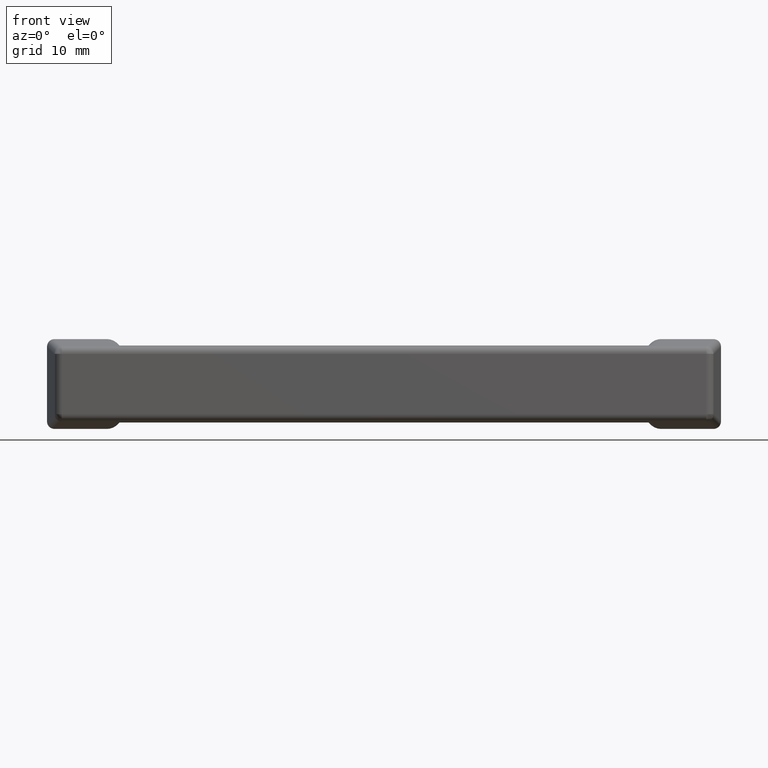
[diagram: clean part render]
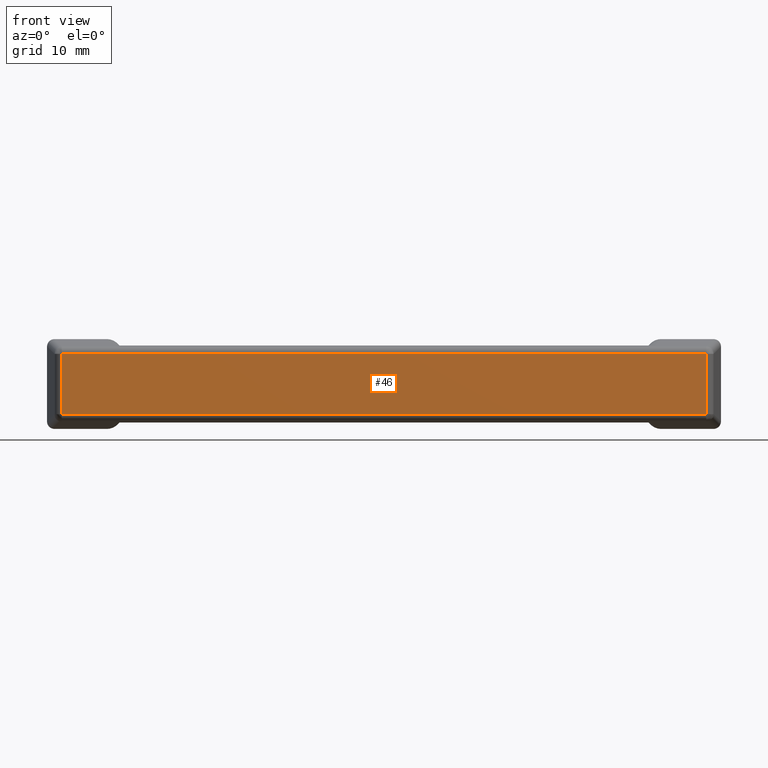
[diagram: same view with one face highlighted and labeled with its STEP entity id]
A machine part, front view. The second image highlights one B-rep face of the part: STEP entity #46.
In plain terms, the highlighted planar face has unit normal (0, 1, -0).
Its self-contained STEP definition (entity closure, byte-faithful):
#46=ADVANCED_FACE('',(#150),#149,.F.);
#149=PLANE('',#604);
#150=FACE_OUTER_BOUND('',#605,.T.);
#601=CARTESIAN_POINT('',(5.16329729293E+001,-3.60000000000E+001,-4.83287045964E+000));
#602=DIRECTION('',(0.00000000000E+000,1.00000000000E+000,-0.00000000000E+000));
#603=DIRECTION('',(-1.00000000000E+000,0.00000000000E+000,0.00000000000E+000));
#604=AXIS2_PLACEMENT_3D('',#601,#602,#603);
#605=EDGE_LOOP('',(#1082,#1083,#1084,#1085));
#1082=ORIENTED_EDGE('',*,*,#1376,.T.);
#1083=ORIENTED_EDGE('',*,*,#1377,.T.);
#1084=ORIENTED_EDGE('',*,*,#1378,.T.);
#1085=ORIENTED_EDGE('',*,*,#1379,.T.);
#1376=EDGE_CURVE('',#1786,#1787,#1788,.T.);
#1377=EDGE_CURVE('',#1787,#1794,#1795,.T.);
#1378=EDGE_CURVE('',#1794,#1801,#1802,.T.);
#1379=EDGE_CURVE('',#1801,#1786,#1808,.T.);
#1786=VERTEX_POINT('',#2748);
#1787=VERTEX_POINT('',#2749);
#1788=LINE('',#2750,#2751);
#1794=VERTEX_POINT('',#2753);
#1795=LINE('',#2754,#2755);
#1801=VERTEX_POINT('',#2757);
#1802=LINE('',#2758,#2759);
#1808=LINE('',#2761,#2762);
#2748=CARTESIAN_POINT('',(4.30274852040E+001,-3.60000000000E+001,4.02739204970E+000));
#2749=CARTESIAN_POINT('',(-4.30273920497E+001,-3.60000000000E+001,4.02739204970E+000));
#2750=CARTESIAN_POINT('',(4.30274852040E+001,-3.60000000000E+001,4.02739204970E+000));
#2751=VECTOR('',#2752,8.60548772537E+001);
#2752=DIRECTION('',(-1.00000000000E+000,0.00000000000E+000,0.00000000000E+000));
#2753=CARTESIAN_POINT('',(-4.30273920497E+001,-3.60000000000E+001,-4.02739204970E+000));
#2754=CARTESIAN_POINT('',(-4.30273920497E+001,-3.60000000000E+001,4.02739204970E+000));
#2755=VECTOR('',#2756,8.05478409940E+000);
#2756=DIRECTION('',(0.00000000000E+000,0.00000000000E+000,-1.00000000000E+000));
#2757=CARTESIAN_POINT('',(4.30274852040E+001,-3.60000000000E+001,-4.02739204970E+000));
#2758=CARTESIAN_POINT('',(-4.30273920497E+001,-3.60000000000E+001,-4.02739204970E+000));
#2759=VECTOR('',#2760,8.60548772537E+001);
#2760=DIRECTION('',(1.00000000000E+000,0.00000000000E+000,0.00000000000E+000));
#2761=CARTESIAN_POINT('',(4.30274852040E+001,-3.60000000000E+001,-4.02739204970E+000));
#2762=VECTOR('',#2763,8.05478409940E+000);
#2763=DIRECTION('',(0.00000000000E+000,0.00000000000E+000,1.00000000000E+000));